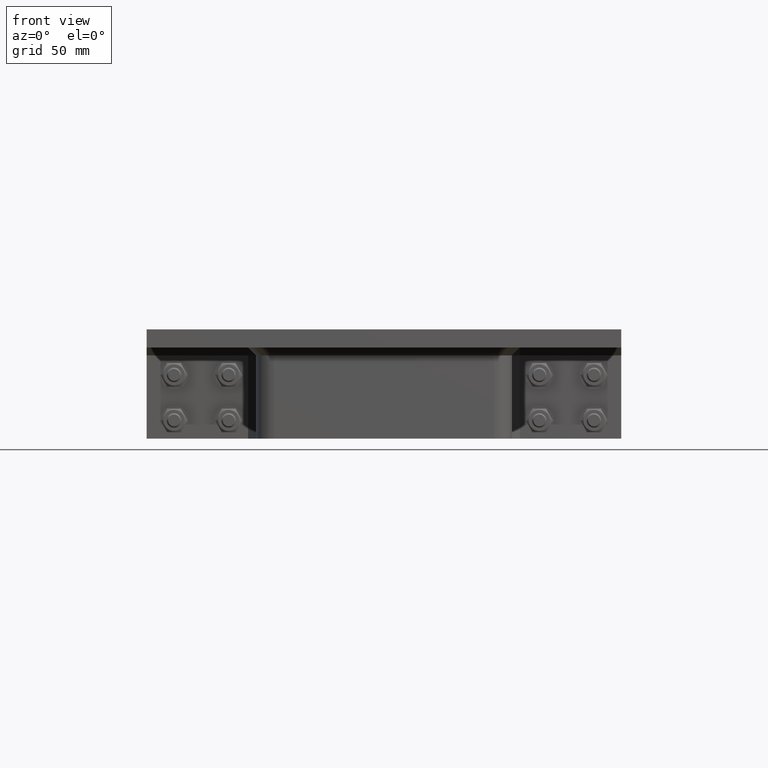
[diagram: clean part render]
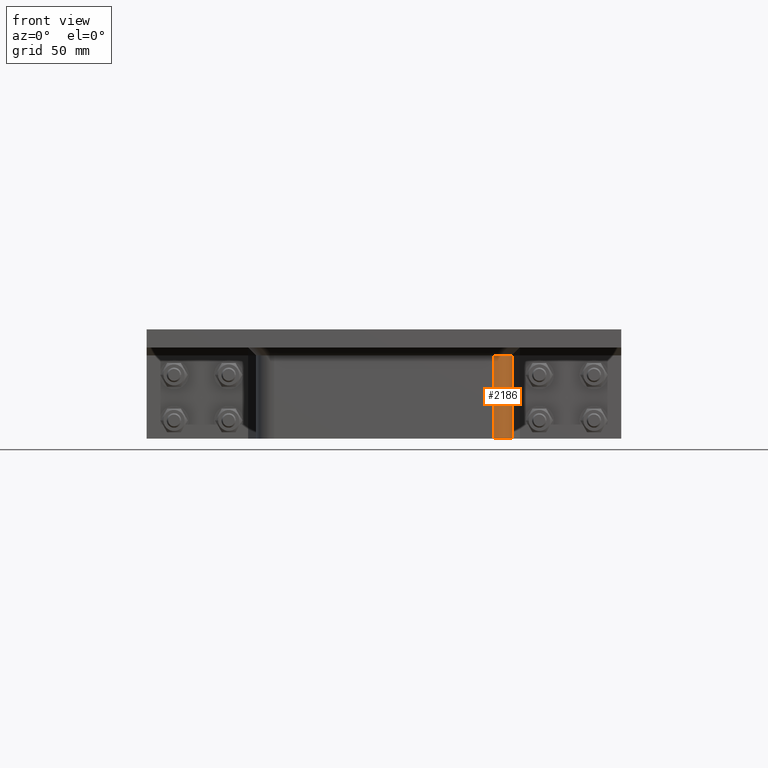
[diagram: same view with one face highlighted and labeled with its STEP entity id]
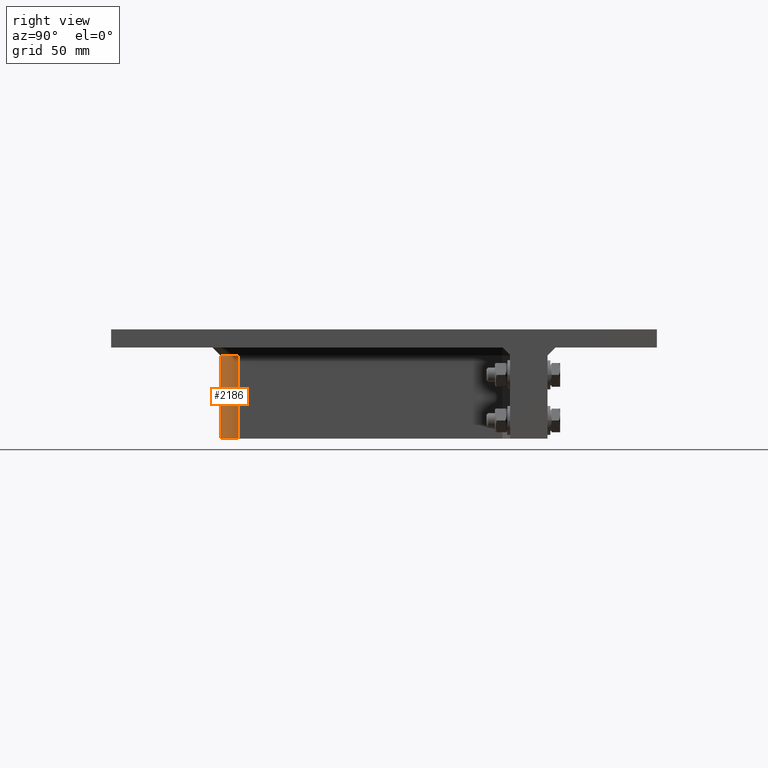
[diagram: same view with one face highlighted and labeled with its STEP entity id]
A machine part, front view. The second image highlights one B-rep face of the part: STEP entity #2186.
A second angle (right view) of the same face is appended — the face is thin or edge-on in the first view.
In plain terms, the highlighted cylindrical surface (edge-blend (fillet) strip) has radius 10 mm, axis along (0, 0, -1).
Its self-contained STEP definition (entity closure, byte-faithful):
#144=CYLINDRICAL_SURFACE('',#2513,10.);
#244=CIRCLE('',#2443,10.);
#271=CIRCLE('',#2490,10.);
#394=FACE_OUTER_BOUND('',#544,.T.);
#544=EDGE_LOOP('',(#1710,#1711,#1712,#1713));
#745=LINE('',#3562,#917);
#746=LINE('',#3564,#918);
#917=VECTOR('',#2910,10.);
#918=VECTOR('',#2913,10.);
#1023=VERTEX_POINT('',#3363);
#1025=VERTEX_POINT('',#3369);
#1073=VERTEX_POINT('',#3507);
#1074=VERTEX_POINT('',#3509);
#1217=EDGE_CURVE('',#1025,#1023,#244,.T.);
#1287=EDGE_CURVE('',#1073,#1074,#271,.T.);
#1314=EDGE_CURVE('',#1023,#1073,#745,.T.);
#1315=EDGE_CURVE('',#1025,#1074,#746,.T.);
#1710=ORIENTED_EDGE('',*,*,#1217,.F.);
#1711=ORIENTED_EDGE('',*,*,#1315,.T.);
#1712=ORIENTED_EDGE('',*,*,#1287,.F.);
#1713=ORIENTED_EDGE('',*,*,#1314,.F.);
#2186=ADVANCED_FACE('',(#394),#144,.T.);
#2443=AXIS2_PLACEMENT_3D('',#3371,#2709,#2710);
#2490=AXIS2_PLACEMENT_3D('',#3510,#2846,#2847);
#2513=AXIS2_PLACEMENT_3D('',#3563,#2911,#2912);
#2709=DIRECTION('center_axis',(0.,0.,1.));
#2710=DIRECTION('ref_axis',(0.,-1.,0.));
#2846=DIRECTION('center_axis',(0.,0.,-1.));
#2847=DIRECTION('ref_axis',(0.,-1.,0.));
#2910=DIRECTION('',(0.,0.,-1.));
#2911=DIRECTION('center_axis',(0.,0.,-1.));
#2912=DIRECTION('ref_axis',(0.,-1.,0.));
#2913=DIRECTION('',(0.,0.,-1.));
#3363=CARTESIAN_POINT('',(70.25,-79.75,-14.3));
#3369=CARTESIAN_POINT('',(60.25,-89.75,-14.3));
#3371=CARTESIAN_POINT('Origin',(60.25,-79.75,-14.3));
#3507=CARTESIAN_POINT('',(70.25,-79.75,-60.));
#3509=CARTESIAN_POINT('',(60.25,-89.75,-60.));
#3510=CARTESIAN_POINT('Origin',(60.25,-79.75,-60.));
#3562=CARTESIAN_POINT('',(70.25,-79.75,0.));
#3563=CARTESIAN_POINT('Origin',(60.25,-79.75,0.));
#3564=CARTESIAN_POINT('',(60.25,-89.75,0.));